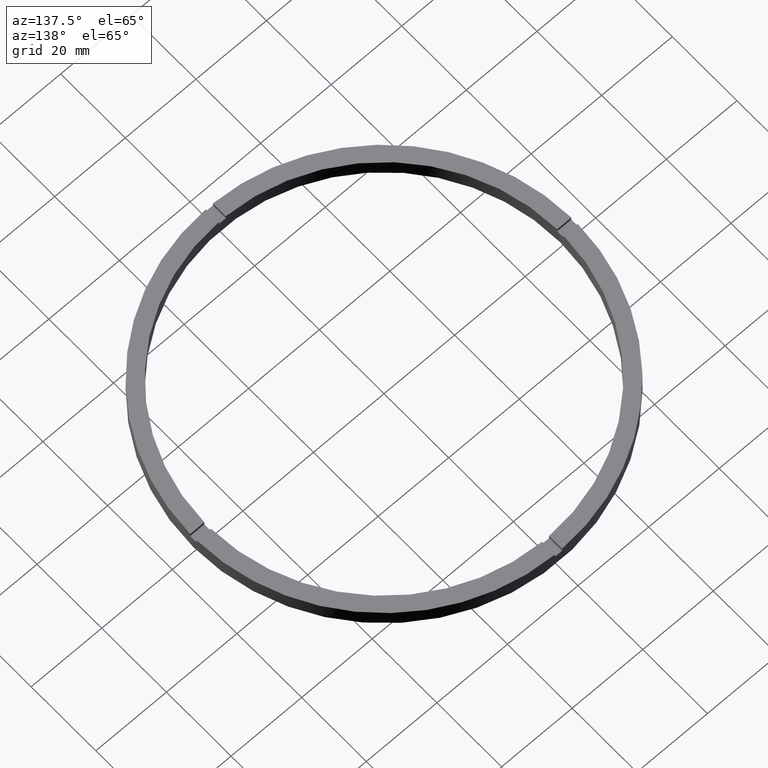
[diagram: clean part render]
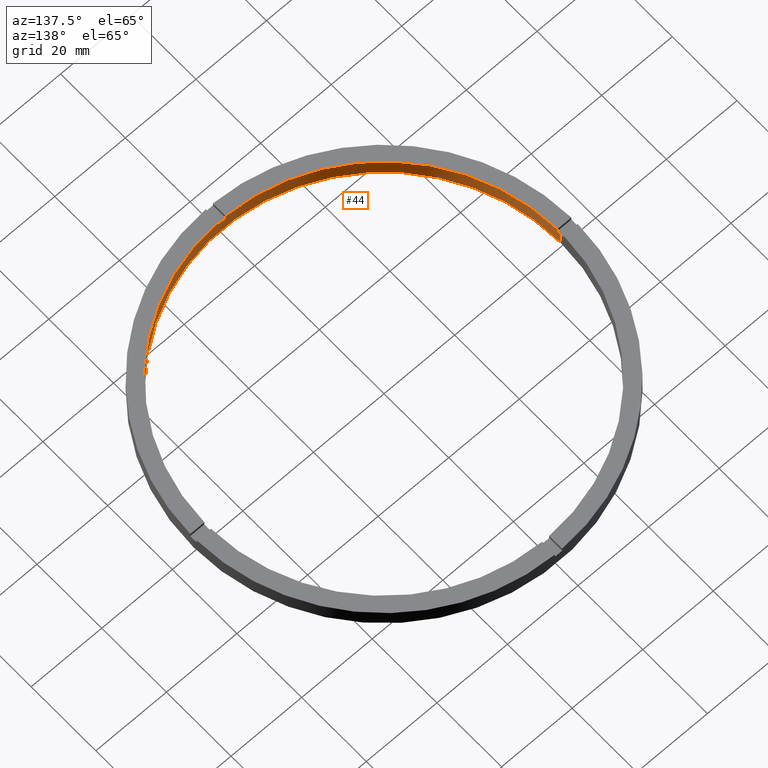
[diagram: same view with one face highlighted and labeled with its STEP entity id]
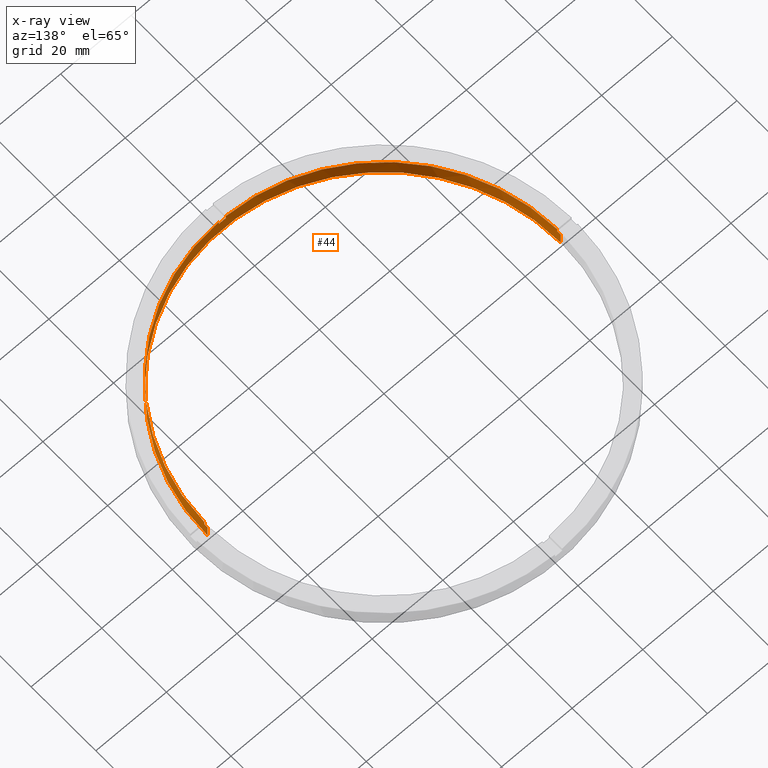
[diagram: x-ray of the same camera — body ghosted, the highlighted face saturated]
A machine part, auxiliary view. The second image highlights one B-rep face of the part: STEP entity #44.
The next image is the same camera in x-ray: the body ghosted, the highlighted face saturated — about 0% of this face is hidden behind the body in this view.
In plain terms, the highlighted cylindrical surface (partial cylindrical patch) has radius 50 mm, axis along (-0, -0, -1).
Its self-contained STEP definition (entity closure, byte-faithful):
#5 = CARTESIAN_POINT ( 'NONE',  ( -49.98999899979995121, -1.000000000000031974, 4.000000000000000000 ) ) ;
#7 = AXIS2_PLACEMENT_3D ( 'NONE', #384, #80, #138 ) ;
#9 = AXIS2_PLACEMENT_3D ( 'NONE', #774, #11, #346 ) ;
#11 = DIRECTION ( 'NONE',  ( 0.000000000000000000, 0.000000000000000000, 1.000000000000000000 ) ) ;
#18 = DIRECTION ( 'NONE',  ( -0.000000000000000000, 0.000000000000000000, 1.000000000000000000 ) ) ;
#26 = DIRECTION ( 'NONE',  ( 0.000000000000000000, 0.000000000000000000, 1.000000000000000000 ) ) ;
#30 = LINE ( 'NONE', #606, #561 ) ;
#38 = LINE ( 'NONE', #497, #72 ) ;
#44 = ADVANCED_FACE ( 'NONE', ( #295 ), #575, .F. ) ;
#49 = CARTESIAN_POINT ( 'NONE',  ( 0.9999999999998436806, -49.98999899979995831, 5.000000000000000000 ) ) ;
#67 = AXIS2_PLACEMENT_3D ( 'NONE', #772, #26, #239 ) ;
#72 = VECTOR ( 'NONE', #779, 1000.000000000000000 ) ;
#79 = LINE ( 'NONE', #562, #605 ) ;
#80 = DIRECTION ( 'NONE',  ( -0.000000000000000000, -0.000000000000000000, -1.000000000000000000 ) ) ;
#86 = ORIENTED_EDGE ( 'NONE', *, *, #156, .T. ) ;
#99 = CARTESIAN_POINT ( 'NONE',  ( 0.9999999999998436806, -49.98999899979995831, 5.000000000000000000 ) ) ;
#101 = EDGE_CURVE ( 'NONE', #639, #760, #300, .T. ) ;
#106 = AXIS2_PLACEMENT_3D ( 'NONE', #323, #18, #692 ) ;
#116 = VERTEX_POINT ( 'NONE', #264 ) ;
#128 = EDGE_CURVE ( 'NONE', #149, #759, #30, .T. ) ;
#137 = AXIS2_PLACEMENT_3D ( 'NONE', #611, #782, #275 ) ;
#138 = DIRECTION ( 'NONE',  ( -1.000000000000000000, 0.000000000000000000, 0.000000000000000000 ) ) ;
#140 = VERTEX_POINT ( 'NONE', #557 ) ;
#142 = ORIENTED_EDGE ( 'NONE', *, *, #128, .F. ) ;
#149 = VERTEX_POINT ( 'NONE', #719 ) ;
#156 = EDGE_CURVE ( 'NONE', #639, #695, #307, .T. ) ;
#174 = ORIENTED_EDGE ( 'NONE', *, *, #389, .T. ) ;
#175 = DIRECTION ( 'NONE',  ( 0.000000000000000000, 0.000000000000000000, 1.000000000000000000 ) ) ;
#179 = ORIENTED_EDGE ( 'NONE', *, *, #567, .T. ) ;
#202 = CARTESIAN_POINT ( 'NONE',  ( 49.98999899979995121, -1.000000000000154543, 5.000000000000000000 ) ) ;
#209 = AXIS2_PLACEMENT_3D ( 'NONE', #777, #256, #388 ) ;
#223 = VERTEX_POINT ( 'NONE', #756 ) ;
#224 = CARTESIAN_POINT ( 'NONE',  ( 0.000000000000000000, 0.000000000000000000, 5.000000000000000000 ) ) ;
#238 = EDGE_CURVE ( 'NONE', #753, #223, #591, .T. ) ;
#239 = DIRECTION ( 'NONE',  ( 1.000000000000000000, 0.000000000000000000, 0.000000000000000000 ) ) ;
#241 = DIRECTION ( 'NONE',  ( -0.000000000000000000, -0.000000000000000000, -1.000000000000000000 ) ) ;
#256 = DIRECTION ( 'NONE',  ( 0.000000000000000000, 0.000000000000000000, 1.000000000000000000 ) ) ;
#258 = EDGE_CURVE ( 'NONE', #149, #699, #563, .T. ) ;
#263 = EDGE_CURVE ( 'NONE', #140, #695, #38, .T. ) ;
#264 = CARTESIAN_POINT ( 'NONE',  ( -49.98999899979995121, -1.000000000000031974, 5.000000000000000000 ) ) ;
#267 = CARTESIAN_POINT ( 'NONE',  ( -1.000000000000156319, -49.98999899979995121, 5.000000000000000000 ) ) ;
#275 = DIRECTION ( 'NONE',  ( 1.000000000000000000, 0.000000000000000000, 0.000000000000000000 ) ) ;
#287 = VECTOR ( 'NONE', #751, 1000.000000000000000 ) ;
#295 = FACE_OUTER_BOUND ( 'NONE', #551, .T. ) ;
#300 = LINE ( 'NONE', #49, #545 ) ;
#307 = CIRCLE ( 'NONE', #9, 50.00000000000000000 ) ;
#314 = EDGE_CURVE ( 'NONE', #759, #223, #602, .T. ) ;
#323 = CARTESIAN_POINT ( 'NONE',  ( 0.000000000000000000, 0.000000000000000000, 4.000000000000000000 ) ) ;
#333 = ORIENTED_EDGE ( 'NONE', *, *, #258, .T. ) ;
#336 = ORIENTED_EDGE ( 'NONE', *, *, #101, .F. ) ;
#341 = VERTEX_POINT ( 'NONE', #515 ) ;
#345 = CIRCLE ( 'NONE', #209, 50.00000000000000000 ) ;
#346 = DIRECTION ( 'NONE',  ( 1.000000000000000000, 0.000000000000000000, 0.000000000000000000 ) ) ;
#347 = CIRCLE ( 'NONE', #722, 50.00000000000000000 ) ;
#354 = CIRCLE ( 'NONE', #106, 50.00000000000000000 ) ;
#355 = VECTOR ( 'NONE', #175, 1000.000000000000000 ) ;
#371 = EDGE_CURVE ( 'NONE', #116, #699, #79, .T. ) ;
#372 = DIRECTION ( 'NONE',  ( 0.000000000000000000, 0.000000000000000000, 1.000000000000000000 ) ) ;
#384 = CARTESIAN_POINT ( 'NONE',  ( 0.000000000000000000, 0.000000000000000000, 5.000000000000000000 ) ) ;
#388 = DIRECTION ( 'NONE',  ( 1.000000000000000000, 0.000000000000000000, 0.000000000000000000 ) ) ;
#389 = EDGE_CURVE ( 'NONE', #140, #753, #345, .T. ) ;
#422 = VERTEX_POINT ( 'NONE', #485 ) ;
#426 = DIRECTION ( 'NONE',  ( 1.000000000000000000, 0.000000000000000000, 0.000000000000000000 ) ) ;
#438 = ORIENTED_EDGE ( 'NONE', *, *, #314, .F. ) ;
#439 = ORIENTED_EDGE ( 'NONE', *, *, #238, .T. ) ;
#469 = CARTESIAN_POINT ( 'NONE',  ( -50.00000000000000000, 0.000000000000000000, 0.000000000000000000 ) ) ;
#482 = ORIENTED_EDGE ( 'NONE', *, *, #263, .F. ) ;
#484 = EDGE_CURVE ( 'NONE', #422, #341, #604, .T. ) ;
#485 = CARTESIAN_POINT ( 'NONE',  ( -1.000000000000156319, -49.98999899979995121, 4.000000000000000000 ) ) ;
#486 = ORIENTED_EDGE ( 'NONE', *, *, #484, .F. ) ;
#497 = CARTESIAN_POINT ( 'NONE',  ( 49.98999899979995121, -1.000000000000154543, 5.000000000000000000 ) ) ;
#515 = CARTESIAN_POINT ( 'NONE',  ( -1.000000000000156319, -49.98999899979995121, 5.000000000000000000 ) ) ;
#538 = CARTESIAN_POINT ( 'NONE',  ( 50.00000000000000000, 6.123233995736766085E-15, 5.000000000000000000 ) ) ;
#545 = VECTOR ( 'NONE', #241, 1000.000000000000000 ) ;
#551 = EDGE_LOOP ( 'NONE', ( #174, #439, #438, #142, #333, #711, #704, #486, #179, #336, #86, #482 ) ) ;
#557 = CARTESIAN_POINT ( 'NONE',  ( 49.98999899979995121, -1.000000000000154543, 4.000000000000000000 ) ) ;
#561 = VECTOR ( 'NONE', #617, 1000.000000000000000 ) ;
#562 = CARTESIAN_POINT ( 'NONE',  ( -49.98999899979995121, -1.000000000000031974, 5.000000000000000000 ) ) ;
#563 = CIRCLE ( 'NONE', #67, 50.00000000000000000 ) ;
#567 = EDGE_CURVE ( 'NONE', #422, #760, #354, .T. ) ;
#575 = CYLINDRICAL_SURFACE ( 'NONE', #7, 50.00000000000000000 ) ;
#591 = LINE ( 'NONE', #538, #287 ) ;
#602 = CIRCLE ( 'NONE', #137, 50.00000000000000000 ) ;
#604 = LINE ( 'NONE', #267, #355 ) ;
#605 = VECTOR ( 'NONE', #697, 1000.000000000000000 ) ;
#606 = CARTESIAN_POINT ( 'NONE',  ( -50.00000000000000000, 0.000000000000000000, 5.000000000000000000 ) ) ;
#611 = CARTESIAN_POINT ( 'NONE',  ( 0.000000000000000000, 0.000000000000000000, 0.000000000000000000 ) ) ;
#617 = DIRECTION ( 'NONE',  ( -0.000000000000000000, -0.000000000000000000, -1.000000000000000000 ) ) ;
#639 = VERTEX_POINT ( 'NONE', #99 ) ;
#652 = CARTESIAN_POINT ( 'NONE',  ( 50.00000000000000000, 6.123233995736766085E-15, 4.000000000000000000 ) ) ;
#692 = DIRECTION ( 'NONE',  ( 1.000000000000000000, 0.000000000000000000, 0.000000000000000000 ) ) ;
#695 = VERTEX_POINT ( 'NONE', #202 ) ;
#697 = DIRECTION ( 'NONE',  ( -0.000000000000000000, -0.000000000000000000, -1.000000000000000000 ) ) ;
#699 = VERTEX_POINT ( 'NONE', #5 ) ;
#704 = ORIENTED_EDGE ( 'NONE', *, *, #741, .T. ) ;
#711 = ORIENTED_EDGE ( 'NONE', *, *, #371, .F. ) ;
#719 = CARTESIAN_POINT ( 'NONE',  ( -50.00000000000000000, 0.000000000000000000, 4.000000000000000000 ) ) ;
#722 = AXIS2_PLACEMENT_3D ( 'NONE', #224, #372, #426 ) ;
#741 = EDGE_CURVE ( 'NONE', #116, #341, #347, .T. ) ;
#751 = DIRECTION ( 'NONE',  ( -0.000000000000000000, -0.000000000000000000, -1.000000000000000000 ) ) ;
#753 = VERTEX_POINT ( 'NONE', #652 ) ;
#756 = CARTESIAN_POINT ( 'NONE',  ( 50.00000000000000000, 6.123233995736766085E-15, 0.000000000000000000 ) ) ;
#759 = VERTEX_POINT ( 'NONE', #469 ) ;
#760 = VERTEX_POINT ( 'NONE', #781 ) ;
#772 = CARTESIAN_POINT ( 'NONE',  ( 0.000000000000000000, 0.000000000000000000, 4.000000000000000000 ) ) ;
#774 = CARTESIAN_POINT ( 'NONE',  ( 0.000000000000000000, 0.000000000000000000, 5.000000000000000000 ) ) ;
#777 = CARTESIAN_POINT ( 'NONE',  ( 0.000000000000000000, 0.000000000000000000, 4.000000000000000000 ) ) ;
#779 = DIRECTION ( 'NONE',  ( 0.000000000000000000, 0.000000000000000000, 1.000000000000000000 ) ) ;
#781 = CARTESIAN_POINT ( 'NONE',  ( 0.9999999999998436806, -49.98999899979995831, 4.000000000000000000 ) ) ;
#782 = DIRECTION ( 'NONE',  ( 0.000000000000000000, 0.000000000000000000, 1.000000000000000000 ) ) ;